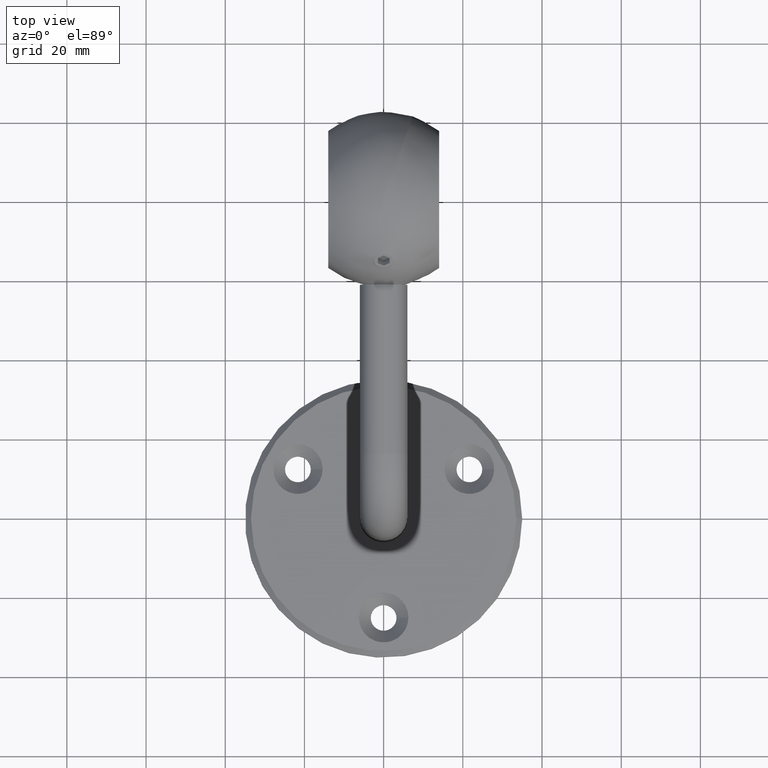
[diagram: clean part render]
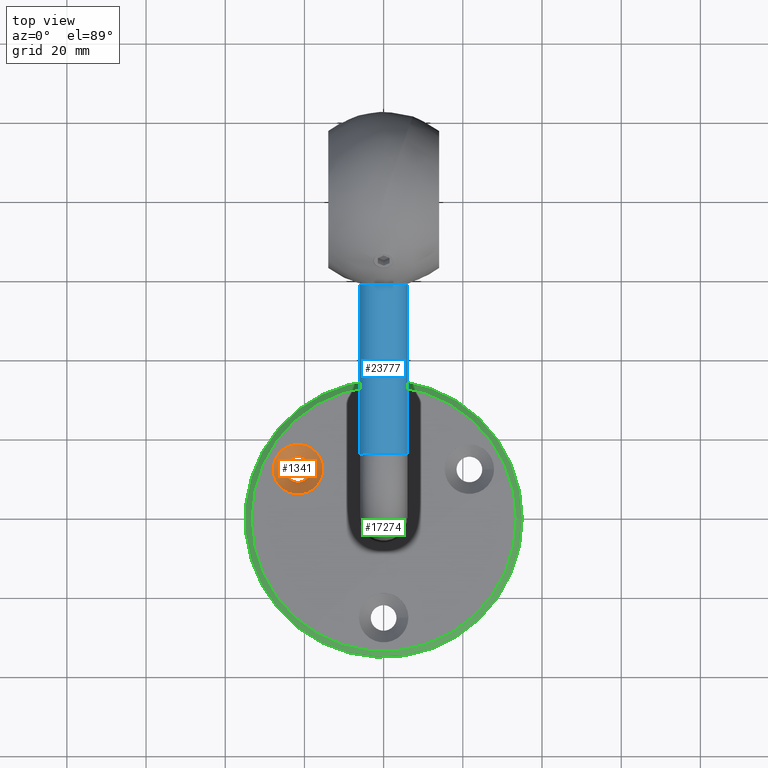
[diagram: same view with three faces highlighted in distinct colors, each labeled with its STEP entity id]
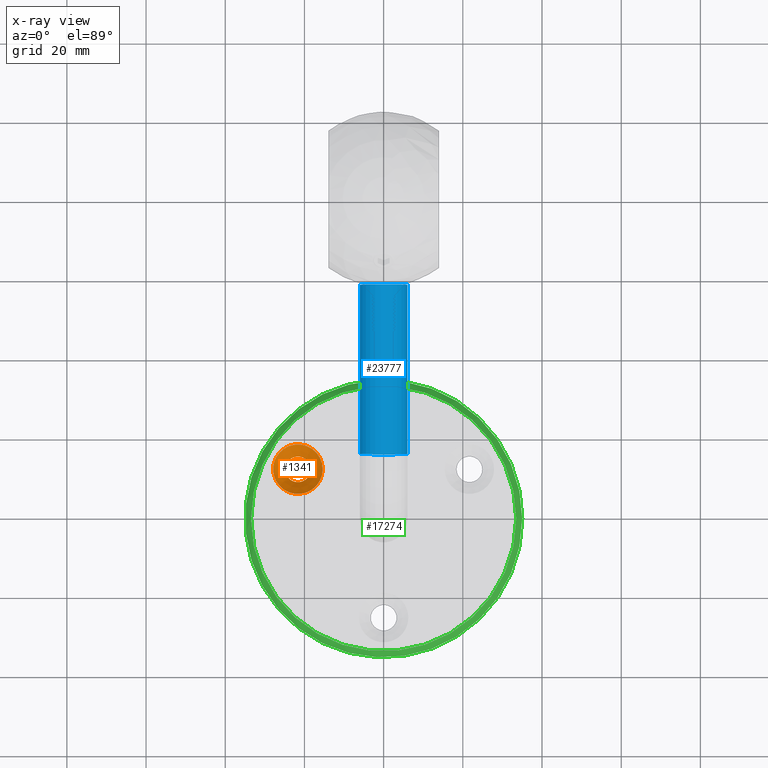
[diagram: x-ray of the same camera — body ghosted, the three highlighted faces saturated]
A machine part, top view with three faces highlighted in distinct colors.
The next image is the same camera in x-ray (body ghosted, the three faces saturated) — at least one of them is partly hidden behind the body in this view.
Their STEP definitions:

[orange] entity #1341 — the highlighted conical surface has half-angle 45 deg.
#127 = DIRECTION ( 'NONE',  ( -0.000000000000000000, -0.000000000000000000, 1.000000000000000000 ) ) ;
#304 = VERTEX_POINT ( 'NONE', #5418 ) ;
#655 = VERTEX_POINT ( 'NONE', #16004 ) ;
#1341 = ADVANCED_FACE ( 'NONE', ( #7730, #1516 ), #28347, .F. ) ;
#1516 = FACE_OUTER_BOUND ( 'NONE', #23630, .T. ) ;
#2416 = DIRECTION ( 'NONE',  ( 1.000000000000000000, 0.000000000000000000, 0.000000000000000000 ) ) ;
#5418 = CARTESIAN_POINT ( 'NONE',  ( -15.40063509461091584, 12.50000000000010303, 5.500000000000003553 ) ) ;
#6829 = DIRECTION ( 'NONE',  ( -0.000000000000000000, -0.000000000000000000, 1.000000000000000000 ) ) ;
#7730 = FACE_BOUND ( 'NONE', #27655, .T. ) ;
#9672 = DIRECTION ( 'NONE',  ( -0.000000000000000000, -0.000000000000000000, 1.000000000000000000 ) ) ;
#9673 = ORIENTED_EDGE ( 'NONE', *, *, #24441, .T. ) ;
#10176 = EDGE_CURVE ( 'NONE', #655, #655, #21561, .T. ) ;
#12571 = CIRCLE ( 'NONE', #24920, 6.249999999999998224 ) ;
#15603 = DIRECTION ( 'NONE',  ( 1.000000000000000000, 0.000000000000000000, 0.000000000000000000 ) ) ;
#16004 = CARTESIAN_POINT ( 'NONE',  ( -18.40063509461090163, 12.50000000000010303, 2.500000000000011102 ) ) ;
#16171 = CARTESIAN_POINT ( 'NONE',  ( -21.65063509461091584, 12.50000000000010303, 5.500000000000003553 ) ) ;
#21561 = CIRCLE ( 'NONE', #27363, 3.250000000000013323 ) ;
#22256 = CARTESIAN_POINT ( 'NONE',  ( -21.65063509461091584, 12.50000000000010303, 5.500000000000003553 ) ) ;
#23426 = ORIENTED_EDGE ( 'NONE', *, *, #10176, .F. ) ;
#23630 = EDGE_LOOP ( 'NONE', ( #9673 ) ) ;
#24441 = EDGE_CURVE ( 'NONE', #304, #304, #12571, .T. ) ;
#24920 = AXIS2_PLACEMENT_3D ( 'NONE', #22256, #127, #15603 ) ;
#25104 = DIRECTION ( 'NONE',  ( 1.000000000000000000, 0.000000000000000000, 0.000000000000000000 ) ) ;
#25412 = AXIS2_PLACEMENT_3D ( 'NONE', #16171, #9672, #25104 ) ;
#27363 = AXIS2_PLACEMENT_3D ( 'NONE', #28475, #6829, #2416 ) ;
#27655 = EDGE_LOOP ( 'NONE', ( #23426 ) ) ;
#28347 = CONICAL_SURFACE ( 'NONE', #25412, 6.249999999999998224, 0.7853981633974471688 ) ;
#28475 = CARTESIAN_POINT ( 'NONE',  ( -21.65063509461091584, 12.50000000000010303, 2.500000000000011102 ) ) ;

[blue] entity #23777 — the highlighted cylindrical surface (bore or boss wall) has radius 6 mm, axis along (0, 1, 0).
#1713 = CARTESIAN_POINT ( 'NONE',  ( 0.000000000000000000, 14.99999999999999289, 75.00000000000000000 ) ) ;
#2960 = CIRCLE ( 'NONE', #10147, 6.000000000000000888 ) ;
#3772 = DIRECTION ( 'NONE',  ( 0.000000000000000000, 1.000000000000000000, 0.000000000000000000 ) ) ;
#4154 = EDGE_LOOP ( 'NONE', ( #5104 ) ) ;
#5104 = ORIENTED_EDGE ( 'NONE', *, *, #22059, .T. ) ;
#5113 = AXIS2_PLACEMENT_3D ( 'NONE', #28134, #3772, #27744 ) ;
#5484 = DIRECTION ( 'NONE',  ( 0.000000000000000000, 1.000000000000000000, 6.123233995736766036E-17 ) ) ;
#5681 = CARTESIAN_POINT ( 'NONE',  ( 0.000000000000000000, 57.74999999999997868, 75.00000000000000000 ) ) ;
#10041 = CIRCLE ( 'NONE', #25884, 6.000000000000000888 ) ;
#10147 = AXIS2_PLACEMENT_3D ( 'NONE', #1713, #21418, #12624 ) ;
#11348 = VERTEX_POINT ( 'NONE', #14428 ) ;
#12624 = DIRECTION ( 'NONE',  ( 1.000000000000000000, 0.000000000000000000, 0.000000000000000000 ) ) ;
#14206 = DIRECTION ( 'NONE',  ( 1.000000000000000000, 0.000000000000000000, 0.000000000000000000 ) ) ;
#14428 = CARTESIAN_POINT ( 'NONE',  ( 6.000000000000000888, 57.74999999999997868, 75.00000000000000000 ) ) ;
#14642 = EDGE_LOOP ( 'NONE', ( #26050 ) ) ;
#14836 = VERTEX_POINT ( 'NONE', #21287 ) ;
#20214 = CYLINDRICAL_SURFACE ( 'NONE', #5113, 6.000000000000005329 ) ;
#21287 = CARTESIAN_POINT ( 'NONE',  ( 6.000000000000000888, 14.99999999999999289, 75.00000000000000000 ) ) ;
#21418 = DIRECTION ( 'NONE',  ( 0.000000000000000000, 1.000000000000000000, 6.123233995736766036E-17 ) ) ;
#22059 = EDGE_CURVE ( 'NONE', #14836, #14836, #2960, .T. ) ;
#22588 = FACE_OUTER_BOUND ( 'NONE', #14642, .T. ) ;
#23777 = ADVANCED_FACE ( 'NONE', ( #24640, #22588 ), #20214, .T. ) ;
#24640 = FACE_OUTER_BOUND ( 'NONE', #4154, .T. ) ;
#25884 = AXIS2_PLACEMENT_3D ( 'NONE', #5681, #5484, #14206 ) ;
#26050 = ORIENTED_EDGE ( 'NONE', *, *, #28000, .F. ) ;
#27744 = DIRECTION ( 'NONE',  ( 0.000000000000000000, 0.000000000000000000, 1.000000000000000000 ) ) ;
#28000 = EDGE_CURVE ( 'NONE', #11348, #11348, #10041, .T. ) ;
#28134 = CARTESIAN_POINT ( 'NONE',  ( 0.000000000000000000, 14.99999999999999289, 75.00000000000000000 ) ) ;

[green] entity #17274 — the highlighted conical surface has half-angle 45 deg.
#919 = DIRECTION ( 'NONE',  ( 1.000000000000000000, 0.000000000000000000, 0.000000000000000000 ) ) ;
#1420 = CIRCLE ( 'NONE', #21896, 33.50000000000002842 ) ;
#1679 = FACE_OUTER_BOUND ( 'NONE', #14485, .T. ) ;
#4149 = CARTESIAN_POINT ( 'NONE',  ( 0.000000000000000000, 0.000000000000000000, 6.000000000000000000 ) ) ;
#6018 = DIRECTION ( 'NONE',  ( 0.000000000000000000, 0.000000000000000000, 1.000000000000000000 ) ) ;
#6451 = CARTESIAN_POINT ( 'NONE',  ( 33.50000000000002842, 0.000000000000000000, 6.000000000000000000 ) ) ;
#7243 = ORIENTED_EDGE ( 'NONE', *, *, #8987, .F. ) ;
#7526 = CONICAL_SURFACE ( 'NONE', #26144, 33.50000000000002842, 0.7853981633974482790 ) ;
#7772 = CARTESIAN_POINT ( 'NONE',  ( 0.000000000000000000, 0.000000000000000000, 4.500000000000019540 ) ) ;
#7931 = AXIS2_PLACEMENT_3D ( 'NONE', #7772, #18914, #919 ) ;
#8915 = FACE_BOUND ( 'NONE', #15366, .T. ) ;
#8987 = EDGE_CURVE ( 'NONE', #25515, #25515, #16431, .T. ) ;
#11560 = CARTESIAN_POINT ( 'NONE',  ( 35.00000000000000711, 0.000000000000000000, 4.500000000000019540 ) ) ;
#14407 = ORIENTED_EDGE ( 'NONE', *, *, #15444, .F. ) ;
#14485 = EDGE_LOOP ( 'NONE', ( #7243 ) ) ;
#15212 = DIRECTION ( 'NONE',  ( 1.000000000000000000, 0.000000000000000000, 0.000000000000000000 ) ) ;
#15366 = EDGE_LOOP ( 'NONE', ( #14407 ) ) ;
#15444 = EDGE_CURVE ( 'NONE', #25855, #25855, #1420, .T. ) ;
#16431 = CIRCLE ( 'NONE', #7931, 35.00000000000000711 ) ;
#17274 = ADVANCED_FACE ( 'NONE', ( #1679, #8915 ), #7526, .T. ) ;
#18914 = DIRECTION ( 'NONE',  ( 0.000000000000000000, 0.000000000000000000, -1.000000000000000000 ) ) ;
#21896 = AXIS2_PLACEMENT_3D ( 'NONE', #4149, #6018, #15212 ) ;
#23024 = DIRECTION ( 'NONE',  ( 0.000000000000000000, 0.000000000000000000, -1.000000000000000000 ) ) ;
#23217 = CARTESIAN_POINT ( 'NONE',  ( 0.000000000000000000, 0.000000000000000000, 6.000000000000000000 ) ) ;
#25515 = VERTEX_POINT ( 'NONE', #11560 ) ;
#25855 = VERTEX_POINT ( 'NONE', #6451 ) ;
#26144 = AXIS2_PLACEMENT_3D ( 'NONE', #23217, #23024, #27738 ) ;
#27738 = DIRECTION ( 'NONE',  ( -1.000000000000000000, 0.000000000000000000, 0.000000000000000000 ) ) ;